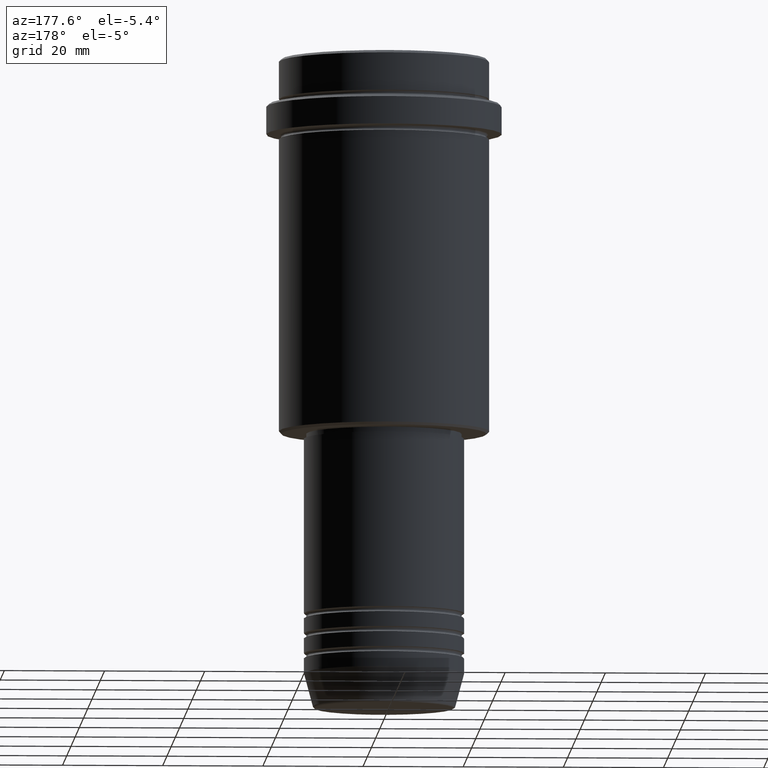
[diagram: clean part render]
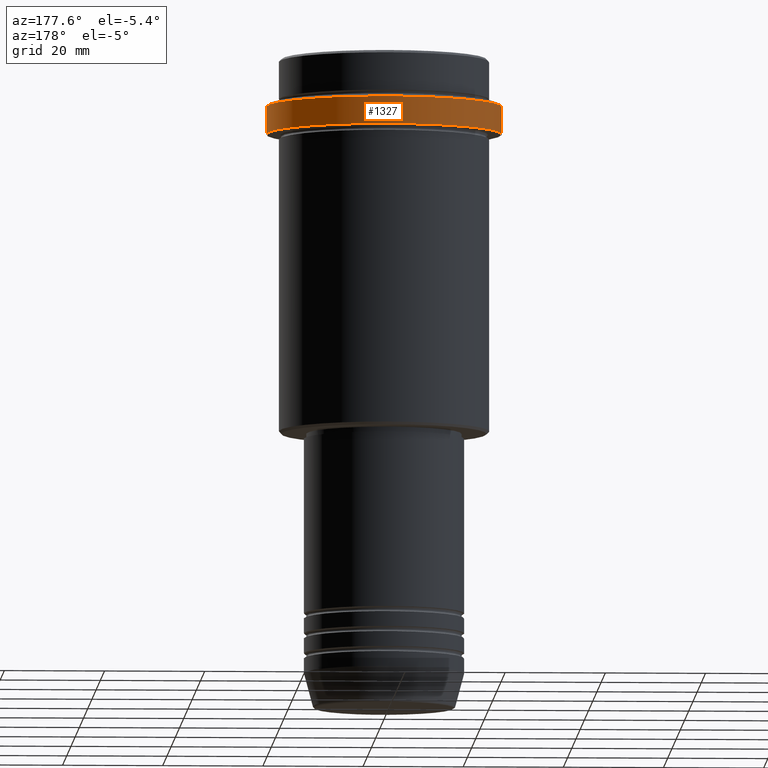
[diagram: same view with one face highlighted and labeled with its STEP entity id]
A machine part, auxiliary view. The second image highlights one B-rep face of the part: STEP entity #1327.
In plain terms, the highlighted cylindrical surface (partial cylindrical patch) has radius 23.5 mm, axis along (-0, -0, 1).
Its self-contained STEP definition (entity closure, byte-faithful):
#7 = LINE ( 'NONE', #460, #30 ) ;
#30 = VECTOR ( 'NONE', #900, 1000.000000000000000 ) ;
#49 = EDGE_LOOP ( 'NONE', ( #481, #401, #1050, #291 ) ) ;
#88 = FACE_OUTER_BOUND ( 'NONE', #49, .T. ) ;
#97 = CARTESIAN_POINT ( 'NONE',  ( 0.000000000000000000, 0.000000000000000000, -9.500000000000014211 ) ) ;
#127 = AXIS2_PLACEMENT_3D ( 'NONE', #1401, #878, #210 ) ;
#145 = CARTESIAN_POINT ( 'NONE',  ( -23.50000000000000711, 2.877919977996281109E-15, -15.00000000000000000 ) ) ;
#210 = DIRECTION ( 'NONE',  ( 1.000000000000000000, 0.000000000000000000, 0.000000000000000000 ) ) ;
#221 = VERTEX_POINT ( 'NONE', #924 ) ;
#291 = ORIENTED_EDGE ( 'NONE', *, *, #1013, .F. ) ;
#311 = CIRCLE ( 'NONE', #1320, 23.50000000000000000 ) ;
#321 = DIRECTION ( 'NONE',  ( -0.000000000000000000, -0.000000000000000000, 1.000000000000000000 ) ) ;
#401 = ORIENTED_EDGE ( 'NONE', *, *, #854, .T. ) ;
#409 = CARTESIAN_POINT ( 'NONE',  ( -23.50000000000000000, 2.877919977996280320E-15, 0.000000000000000000 ) ) ;
#439 = LINE ( 'NONE', #409, #936 ) ;
#460 = CARTESIAN_POINT ( 'NONE',  ( 23.50000000000000000, 0.000000000000000000, 0.000000000000000000 ) ) ;
#481 = ORIENTED_EDGE ( 'NONE', *, *, #753, .T. ) ;
#618 = VERTEX_POINT ( 'NONE', #145 ) ;
#622 = DIRECTION ( 'NONE',  ( 1.000000000000000000, 0.000000000000000000, 0.000000000000000000 ) ) ;
#753 = EDGE_CURVE ( 'NONE', #1074, #618, #976, .T. ) ;
#817 = DIRECTION ( 'NONE',  ( -0.000000000000000000, -0.000000000000000000, 1.000000000000000000 ) ) ;
#854 = EDGE_CURVE ( 'NONE', #618, #871, #439, .T. ) ;
#871 = VERTEX_POINT ( 'NONE', #1391 ) ;
#872 = DIRECTION ( 'NONE',  ( 0.000000000000000000, 0.000000000000000000, -1.000000000000000000 ) ) ;
#878 = DIRECTION ( 'NONE',  ( -0.000000000000000000, -0.000000000000000000, 1.000000000000000000 ) ) ;
#900 = DIRECTION ( 'NONE',  ( -0.000000000000000000, -0.000000000000000000, 1.000000000000000000 ) ) ;
#924 = CARTESIAN_POINT ( 'NONE',  ( 23.50000000000000000, 0.000000000000000000, -9.500000000000014211 ) ) ;
#936 = VECTOR ( 'NONE', #321, 1000.000000000000000 ) ;
#946 = CARTESIAN_POINT ( 'NONE',  ( 0.000000000000000000, 0.000000000000000000, -15.00000000000000000 ) ) ;
#976 = CIRCLE ( 'NONE', #1060, 23.50000000000000355 ) ;
#1013 = EDGE_CURVE ( 'NONE', #1074, #221, #7, .T. ) ;
#1050 = ORIENTED_EDGE ( 'NONE', *, *, #1372, .T. ) ;
#1060 = AXIS2_PLACEMENT_3D ( 'NONE', #946, #817, #622 ) ;
#1074 = VERTEX_POINT ( 'NONE', #1239 ) ;
#1161 = DIRECTION ( 'NONE',  ( 1.000000000000000000, 0.000000000000000000, 0.000000000000000000 ) ) ;
#1194 = CYLINDRICAL_SURFACE ( 'NONE', #127, 23.50000000000000000 ) ;
#1239 = CARTESIAN_POINT ( 'NONE',  ( 23.50000000000000355, 0.000000000000000000, -15.00000000000000000 ) ) ;
#1320 = AXIS2_PLACEMENT_3D ( 'NONE', #97, #872, #1161 ) ;
#1327 = ADVANCED_FACE ( 'NONE', ( #88 ), #1194, .T. ) ;
#1372 = EDGE_CURVE ( 'NONE', #871, #221, #311, .T. ) ;
#1391 = CARTESIAN_POINT ( 'NONE',  ( -23.50000000000000000, 2.877919977996280320E-15, -9.500000000000014211 ) ) ;
#1401 = CARTESIAN_POINT ( 'NONE',  ( 0.000000000000000000, 0.000000000000000000, 0.000000000000000000 ) ) ;